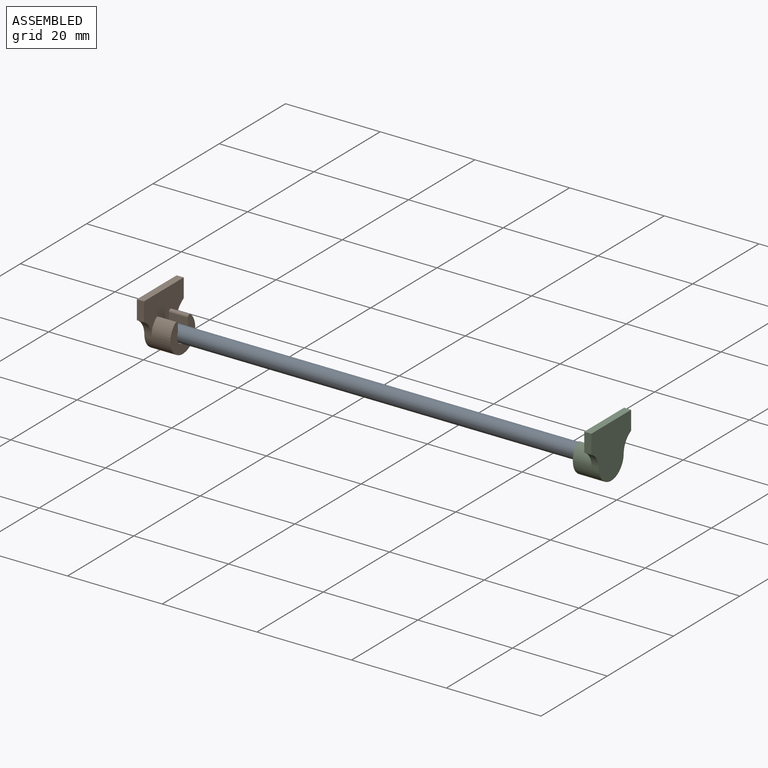
[diagram: assembled view]
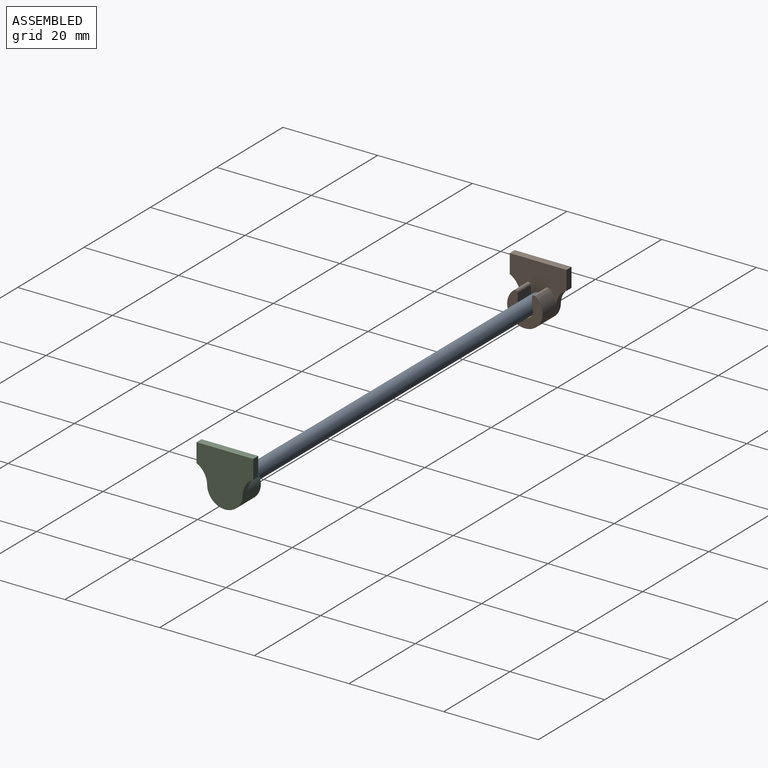
[diagram: assembled view, second angle]
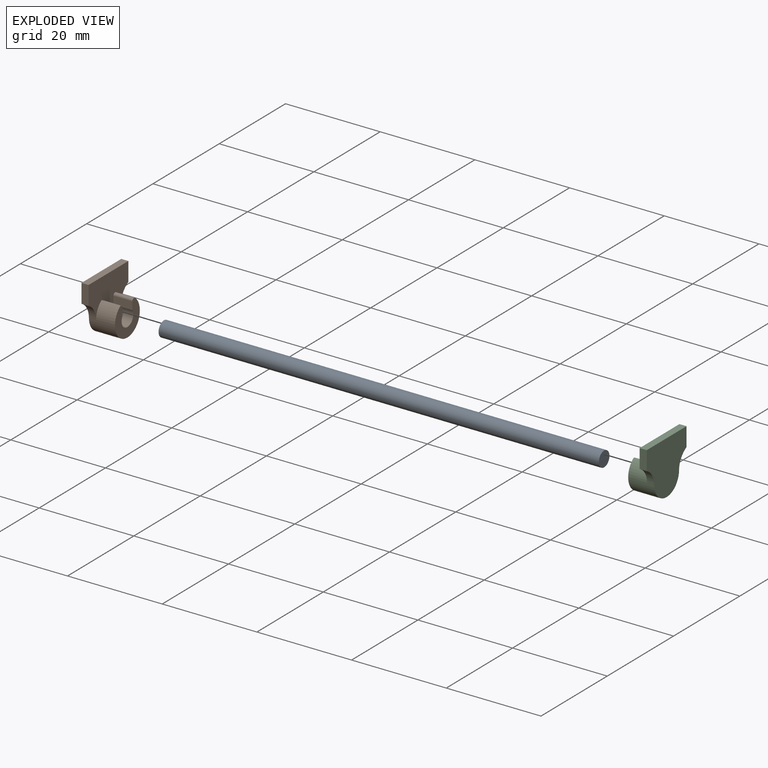
[diagram: exploded view]
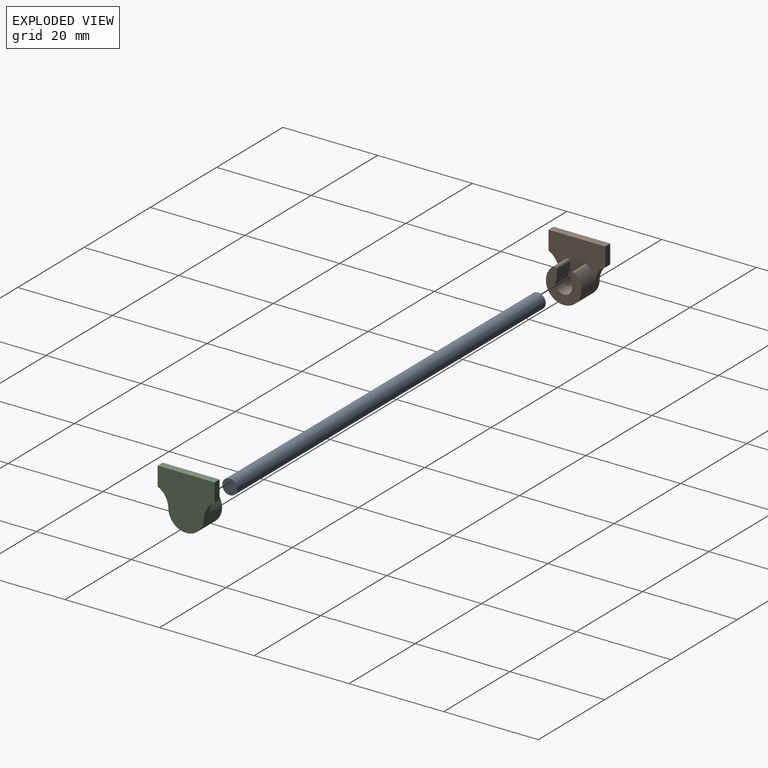
[diagram: exploded view, second angle]
ASSEMBLY  parts=3 mates=2
PART A: 3 faces, bbox 93x3.2x3.2 mm
  f0: cylinder r=1.6mm len=93mm, axis (-1,0,0), area 934.9mm2, adj f1,f2
  f1: plane 3.2x3.2mm, normal (1,0,0), area 8mm2, adj f0
  f2: plane 3.2x3.2mm, normal (-1,0,0), area 8mm2, adj f0
PART B: 14 faces, bbox 5.5x12x11.3 mm
  f0: cylinder r=3.75mm len=7.5mm, axis (-1,0,0), area 92mm2, adj f4,f6,f7,f10,f11,f12,f13
  f1: plane 4x1.66mm, normal (0,-1,0), area 6.6mm2, adj f2,f4,f11,f12
  f2: cylinder r=1.75mm len=4mm, axis (-1,0,0), area 29.6mm2, adj f1,f3,f4,f11
  f3: plane 4x1.66mm, normal (0,1,0), area 6.6mm2, adj f2,f4,f11,f13
  f4: plane 7.5x6.81mm, normal (1,0,0), area 27.7mm2, adj f0,f1,f2,f3,f12,f13
  f5: plane 4x1.5mm, normal (0,-1,0), area 6mm2, adj f6,f9,f10,f11
  f6: cylinder r=4mm len=3.5mm, axis (1,0,0), area 6.6mm2, adj f0,f5,f10,f11
  f7: cylinder r=4mm len=3.5mm, axis (1,0,0), area 6.6mm2, adj f0,f8,f10,f11
  f8: plane 4x1.5mm, normal (0,1,0), area 6mm2, adj f7,f9,f10,f11
  f9: plane 12x1.5mm, normal (0,0,1), area 18mm2, adj f5,f8,f10,f11
  f10: plane 12x11.25mm, normal (-1,0,0), area 100.9mm2, adj f0,f5,f6,f7,f8,f9
  f11: plane 12x9.25mm, normal (1,0,0), area 73.2mm2, adj f0,f1,f2,f3,f5,f6,f7,f8
  f12: cylinder r=0.5mm len=4mm, axis (-1,0,0), area 4.5mm2, adj f0,f1,f4,f11
  f13: cylinder r=0.5mm len=4mm, axis (-1,0,0), area 4.5mm2, adj f0,f3,f4,f11
PART C: same geometry as B
PLACE A rot(axis=(0,1,0),180deg) t=(95,-16.99,23.66)mm
PLACE B t=(2,-0.87,-8.06)mm
PLACE C rot(axis=(0,0,1),180deg) t=(95,47.53,-8.06)mm
MATE fastened A.f0 <-> C.f0  axis (1,0,0) through (95,23.33,8.56)mm
MATE fastened A.f0 <-> B.f0  axis (-1,0,0) through (2,23.33,8.56)mm
